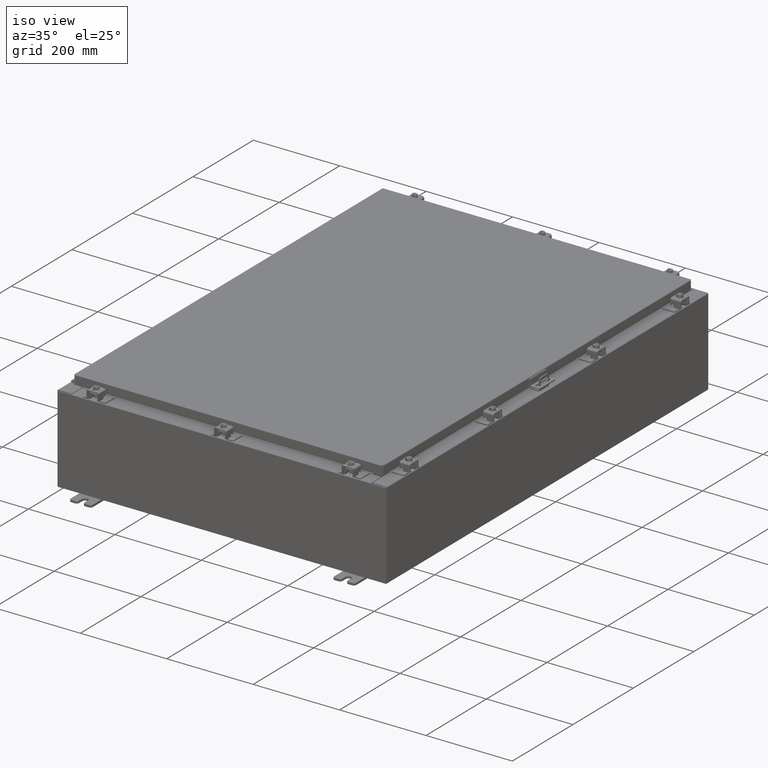
[diagram: clean part render]
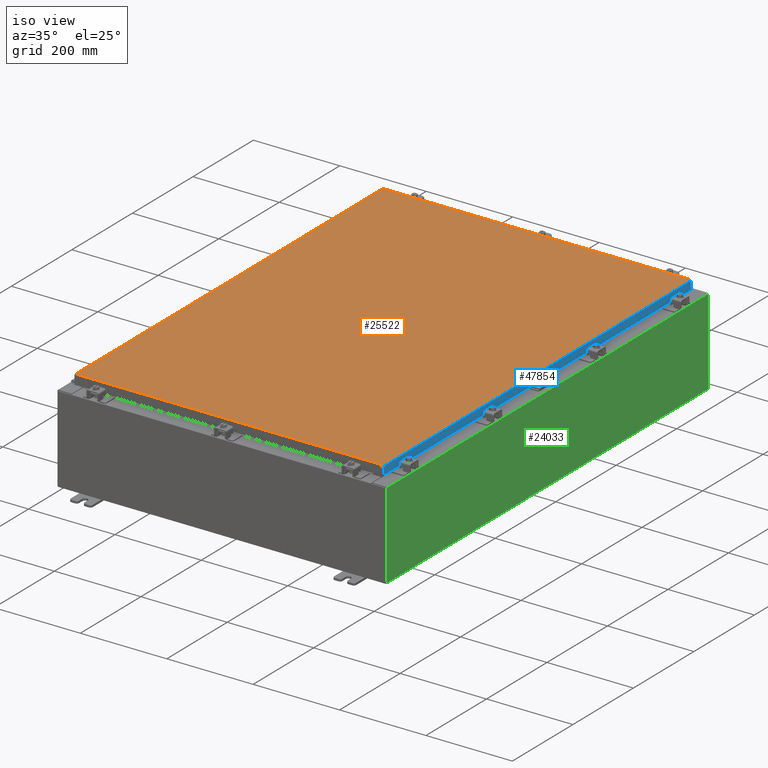
[diagram: same view with three faces highlighted in distinct colors, each labeled with its STEP entity id]
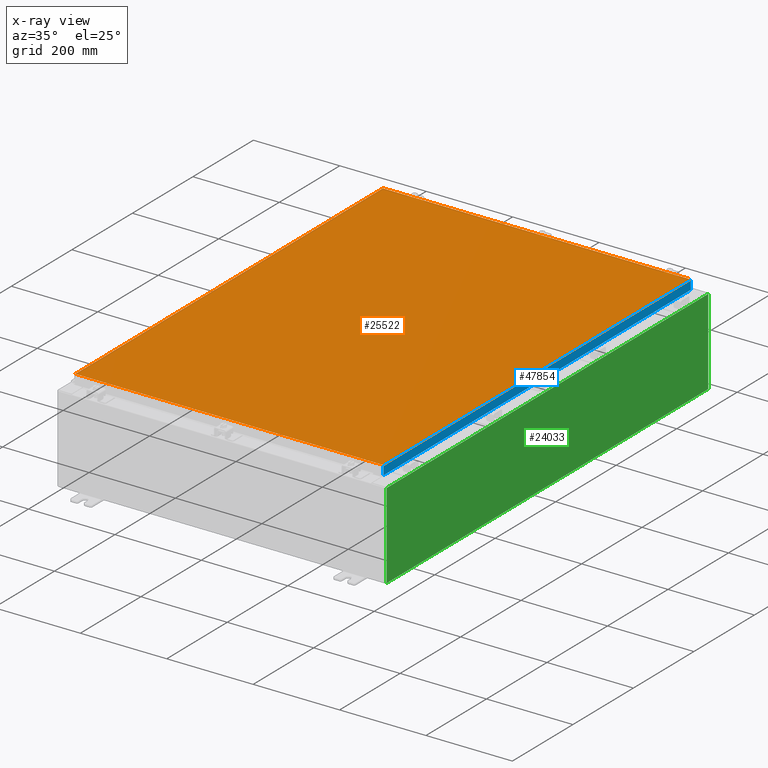
[diagram: x-ray of the same camera — body ghosted, the three highlighted faces saturated]
A machine part, iso view with three faces highlighted in distinct colors.
The next image is the same camera in x-ray (body ghosted, the three faces saturated) — at least one of them is partly hidden behind the body in this view.
Their STEP definitions:

[orange] entity #25522 — the highlighted planar face has unit normal (0, 0, -1).
#313 = VECTOR ( 'NONE', #47544, 39.37007874015748100 ) ;
#679 = DIRECTION ( 'NONE',  ( -1.000000000000000000, 0.0000000000000000000, -0.0000000000000000000 ) ) ;
#1890 = VERTEX_POINT ( 'NONE', #18269 ) ;
#2990 = CARTESIAN_POINT ( 'NONE',  ( 13.99030000000000100, 20.00630000000000700, 1.946441695485787500E-015 ) ) ;
#4310 = ORIENTED_EDGE ( 'NONE', *, *, #18295, .T. ) ;
#5176 = VECTOR ( 'NONE', #37061, 39.37007874015748100 ) ;
#6546 = FACE_OUTER_BOUND ( 'NONE', #15259, .T. ) ;
#6768 = ORIENTED_EDGE ( 'NONE', *, *, #30597, .T. ) ;
#11998 = AXIS2_PLACEMENT_3D ( 'NONE', #30314, #22970, #679 ) ;
#12288 = EDGE_CURVE ( 'NONE', #29133, #36327, #45917, .T. ) ;
#15259 = EDGE_LOOP ( 'NONE', ( #38358, #32200, #6768, #4310 ) ) ;
#15336 = DIRECTION ( 'NONE',  ( 0.0000000000000000000, -1.000000000000000000, 0.0000000000000000000 ) ) ;
#15792 = CARTESIAN_POINT ( 'NONE',  ( -13.99029999999999800, -20.00630000000001000, 1.946441695485787500E-015 ) ) ;
#16195 = VECTOR ( 'NONE', #18444, 39.37007874015748100 ) ;
#16483 = CARTESIAN_POINT ( 'NONE',  ( 13.99030000000000100, -20.00630000000000300, -2.048885995248197400E-016 ) ) ;
#18269 = CARTESIAN_POINT ( 'NONE',  ( -13.99029999999999800, 20.00630000000000000, -2.048885995248197400E-016 ) ) ;
#18295 = EDGE_CURVE ( 'NONE', #1890, #29133, #30411, .T. ) ;
#18444 = DIRECTION ( 'NONE',  ( 0.0000000000000000000, 1.000000000000000000, 0.0000000000000000000 ) ) ;
#20527 = VECTOR ( 'NONE', #15336, 39.37007874015748100 ) ;
#21123 = EDGE_CURVE ( 'NONE', #36327, #34178, #26036, .T. ) ;
#22970 = DIRECTION ( 'NONE',  ( 0.0000000000000000000, 0.0000000000000000000, -1.000000000000000000 ) ) ;
#25522 = ADVANCED_FACE ( 'NONE', ( #6546 ), #41553, .F. ) ;
#25782 = CARTESIAN_POINT ( 'NONE',  ( 13.99030000000000100, 20.00630000000000700, 1.946441695485787500E-015 ) ) ;
#26036 = LINE ( 'NONE', #44453, #16195 ) ;
#26344 = CARTESIAN_POINT ( 'NONE',  ( -13.99029999999999800, 20.00630000000000300, -2.048885995248197400E-016 ) ) ;
#29133 = VERTEX_POINT ( 'NONE', #15792 ) ;
#30029 = LINE ( 'NONE', #2990, #313 ) ;
#30314 = CARTESIAN_POINT ( 'NONE',  ( 0.0000000000000000000, 0.0000000000000000000, 0.0000000000000000000 ) ) ;
#30411 = LINE ( 'NONE', #26344, #20527 ) ;
#30597 = EDGE_CURVE ( 'NONE', #34178, #1890, #30029, .T. ) ;
#32200 = ORIENTED_EDGE ( 'NONE', *, *, #21123, .T. ) ;
#33311 = CARTESIAN_POINT ( 'NONE',  ( -13.99029999999999800, -20.00630000000001000, 1.946441695485787500E-015 ) ) ;
#34178 = VERTEX_POINT ( 'NONE', #25782 ) ;
#36327 = VERTEX_POINT ( 'NONE', #16483 ) ;
#37061 = DIRECTION ( 'NONE',  ( 1.000000000000000000, -0.0000000000000000000, -0.0000000000000000000 ) ) ;
#38358 = ORIENTED_EDGE ( 'NONE', *, *, #12288, .T. ) ;
#41553 = PLANE ( 'NONE',  #11998 ) ;
#44453 = CARTESIAN_POINT ( 'NONE',  ( 13.99030000000000100, -20.00630000000000300, -2.048885995248197400E-016 ) ) ;
#45917 = LINE ( 'NONE', #33311, #5176 ) ;
#47544 = DIRECTION ( 'NONE',  ( -1.000000000000000000, -0.0000000000000000000, -0.0000000000000000000 ) ) ;

[blue] entity #47854 — the highlighted planar face has unit normal (1, 0, 0).
#159 = CARTESIAN_POINT ( 'NONE',  ( 14.07800000000000500, -20.09400000000000800, -0.8499999999999996400 ) ) ;
#1443 = VERTEX_POINT ( 'NONE', #28542 ) ;
#1852 = ORIENTED_EDGE ( 'NONE', *, *, #14414, .F. ) ;
#2256 = LINE ( 'NONE', #5105, #10993 ) ;
#2348 = VERTEX_POINT ( 'NONE', #7243 ) ;
#3955 = VECTOR ( 'NONE', #26184, 39.37007874015748100 ) ;
#4820 = ORIENTED_EDGE ( 'NONE', *, *, #36289, .T. ) ;
#5105 = CARTESIAN_POINT ( 'NONE',  ( 14.07800000000000300, 0.0000000000000000000, -0.08770000000000007000 ) ) ;
#5284 = PLANE ( 'NONE',  #14372 ) ;
#6016 = LINE ( 'NONE', #42738, #24623 ) ;
#6045 = CARTESIAN_POINT ( 'NONE',  ( 14.07800000000000300, -20.00515786437628000, -0.07469999999999978000 ) ) ;
#7037 = ORIENTED_EDGE ( 'NONE', *, *, #10509, .F. ) ;
#7243 = CARTESIAN_POINT ( 'NONE',  ( 14.07800000000000500, -20.00515786437627200, -0.8499999999999996400 ) ) ;
#9798 = DIRECTION ( 'NONE',  ( -2.818880942772360100E-015, -6.982962677686265900E-015, 1.000000000000000000 ) ) ;
#9800 = EDGE_CURVE ( 'NONE', #22816, #28175, #6016, .T. ) ;
#10509 = EDGE_CURVE ( 'NONE', #2348, #42361, #14099, .T. ) ;
#10993 = VECTOR ( 'NONE', #38463, 39.37007874015748100 ) ;
#11867 = CARTESIAN_POINT ( 'NONE',  ( 14.07800000000000300, -20.00515786437628000, -0.08770000000000007000 ) ) ;
#13872 = LINE ( 'NONE', #159, #3955 ) ;
#14099 = LINE ( 'NONE', #6045, #22789 ) ;
#14372 = AXIS2_PLACEMENT_3D ( 'NONE', #23817, #38816, #16504 ) ;
#14414 = EDGE_CURVE ( 'NONE', #22816, #1443, #15002, .T. ) ;
#15002 = LINE ( 'NONE', #28951, #43534 ) ;
#16504 = DIRECTION ( 'NONE',  ( 2.818880942772360100E-015, 0.0000000000000000000, -1.000000000000000000 ) ) ;
#16517 = DIRECTION ( 'NONE',  ( -2.818880942772360100E-015, -6.982962677686265900E-015, 1.000000000000000000 ) ) ;
#18939 = EDGE_LOOP ( 'NONE', ( #7037, #23194, #39426, #1852, #44524, #4820 ) ) ;
#21173 = EDGE_CURVE ( 'NONE', #30120, #2348, #13872, .T. ) ;
#21449 = CARTESIAN_POINT ( 'NONE',  ( 14.07799999999999600, 19.25515786437627200, -0.8500000000000018700 ) ) ;
#22789 = VECTOR ( 'NONE', #9798, 39.37007874015748100 ) ;
#22816 = VERTEX_POINT ( 'NONE', #23352 ) ;
#23194 = ORIENTED_EDGE ( 'NONE', *, *, #21173, .F. ) ;
#23352 = CARTESIAN_POINT ( 'NONE',  ( 14.07800000000000500, 20.00515786437627200, -0.8499999999999996400 ) ) ;
#23817 = CARTESIAN_POINT ( 'NONE',  ( 14.07800000000000300, 0.0000000000000000000, 3.994501956836086900E-014 ) ) ;
#24369 = EDGE_CURVE ( 'NONE', #1443, #30120, #44484, .T. ) ;
#24623 = VECTOR ( 'NONE', #16517, 39.37007874015748100 ) ;
#24832 = CARTESIAN_POINT ( 'NONE',  ( 14.07800000000000300, 20.00515786437626900, -0.08770000000000007000 ) ) ;
#25167 = DIRECTION ( 'NONE',  ( 0.0000000000000000000, -1.000000000000000000, 0.0000000000000000000 ) ) ;
#26184 = DIRECTION ( 'NONE',  ( 0.0000000000000000000, -1.000000000000000000, 0.0000000000000000000 ) ) ;
#28175 = VERTEX_POINT ( 'NONE', #24832 ) ;
#28542 = CARTESIAN_POINT ( 'NONE',  ( 14.07799999999999600, 19.25515786437627200, -0.8500000000000018700 ) ) ;
#28951 = CARTESIAN_POINT ( 'NONE',  ( 14.07800000000000500, -20.09400000000000800, -0.8499999999999996400 ) ) ;
#29061 = FACE_OUTER_BOUND ( 'NONE', #18939, .T. ) ;
#29835 = CARTESIAN_POINT ( 'NONE',  ( 14.07799999999999600, -19.25515786437627600, -0.8500000000000018700 ) ) ;
#30120 = VERTEX_POINT ( 'NONE', #29835 ) ;
#33427 = VECTOR ( 'NONE', #25167, 39.37007874015748100 ) ;
#36289 = EDGE_CURVE ( 'NONE', #28175, #42361, #2256, .T. ) ;
#38463 = DIRECTION ( 'NONE',  ( 0.0000000000000000000, -1.000000000000000000, 0.0000000000000000000 ) ) ;
#38816 = DIRECTION ( 'NONE',  ( 1.000000000000000000, 0.0000000000000000000, 2.818880942772360100E-015 ) ) ;
#39426 = ORIENTED_EDGE ( 'NONE', *, *, #24369, .F. ) ;
#42361 = VERTEX_POINT ( 'NONE', #11867 ) ;
#42738 = CARTESIAN_POINT ( 'NONE',  ( 14.07800000000000300, 20.00515786437626900, 1.796402902965222800E-013 ) ) ;
#43534 = VECTOR ( 'NONE', #43783, 39.37007874015748100 ) ;
#43783 = DIRECTION ( 'NONE',  ( 0.0000000000000000000, -1.000000000000000000, 0.0000000000000000000 ) ) ;
#44484 = LINE ( 'NONE', #21449, #33427 ) ;
#44524 = ORIENTED_EDGE ( 'NONE', *, *, #9800, .T. ) ;
#47854 = ADVANCED_FACE ( 'NONE', ( #29061 ), #5284, .T. ) ;

[green] entity #24033 — the highlighted planar face has unit normal (-1, 0, 0).
#883 = VECTOR ( 'NONE', #23407, 39.37007874015748100 ) ;
#1826 = ORIENTED_EDGE ( 'NONE', *, *, #39650, .T. ) ;
#4540 = CARTESIAN_POINT ( 'NONE',  ( 15.00000000000003200, -20.92529999999998900, 7.837599999999999200 ) ) ;
#4843 = EDGE_CURVE ( 'NONE', #10370, #42790, #24791, .T. ) ;
#5166 = EDGE_CURVE ( 'NONE', #42790, #27906, #20711, .T. ) ;
#6193 = VECTOR ( 'NONE', #35812, 39.37007874015748100 ) ;
#10370 = VERTEX_POINT ( 'NONE', #31259 ) ;
#11895 = EDGE_LOOP ( 'NONE', ( #34378, #1826, #18005, #34169 ) ) ;
#12060 = PLANE ( 'NONE',  #25263 ) ;
#13376 = EDGE_CURVE ( 'NONE', #10370, #18408, #31950, .T. ) ;
#15770 = CARTESIAN_POINT ( 'NONE',  ( 15.00000000000000400, 0.0000000000000000000, -5.403395625144963300E-014 ) ) ;
#15972 = CARTESIAN_POINT ( 'NONE',  ( 15.00000000000000400, -20.92529999999998900, 0.01299999999999920500 ) ) ;
#18005 = ORIENTED_EDGE ( 'NONE', *, *, #13376, .F. ) ;
#18408 = VERTEX_POINT ( 'NONE', #15972 ) ;
#19514 = DIRECTION ( 'NONE',  ( 3.584876173029202900E-015, 0.0000000000000000000, 1.000000000000000000 ) ) ;
#20711 = LINE ( 'NONE', #45694, #883 ) ;
#23407 = DIRECTION ( 'NONE',  ( -0.0000000000000000000, -1.000000000000000000, -0.0000000000000000000 ) ) ;
#24033 = ADVANCED_FACE ( 'NONE', ( #43932 ), #12060, .F. ) ;
#24791 = LINE ( 'NONE', #32072, #6193 ) ;
#25263 = AXIS2_PLACEMENT_3D ( 'NONE', #15770, #41817, #19514 ) ;
#27906 = VERTEX_POINT ( 'NONE', #4540 ) ;
#31259 = CARTESIAN_POINT ( 'NONE',  ( 15.00000000000000400, 20.92529999999999300, 0.01300000000000203200 ) ) ;
#31950 = LINE ( 'NONE', #38456, #33099 ) ;
#32072 = CARTESIAN_POINT ( 'NONE',  ( 15.00000000000000400, 20.92529999999999600, -5.403395625144963300E-014 ) ) ;
#32961 = CARTESIAN_POINT ( 'NONE',  ( 15.00000000000003200, 20.92529999999998600, 7.837599999999999200 ) ) ;
#33099 = VECTOR ( 'NONE', #42024, 39.37007874015748100 ) ;
#33345 = VECTOR ( 'NONE', #44656, 39.37007874015748100 ) ;
#34169 = ORIENTED_EDGE ( 'NONE', *, *, #4843, .T. ) ;
#34378 = ORIENTED_EDGE ( 'NONE', *, *, #5166, .T. ) ;
#34523 = LINE ( 'NONE', #40934, #33345 ) ;
#35812 = DIRECTION ( 'NONE',  ( 3.584876173029202900E-015, 0.0000000000000000000, 1.000000000000000000 ) ) ;
#38456 = CARTESIAN_POINT ( 'NONE',  ( 15.00000000000000400, -20.92529999999998900, 0.01299999999999984700 ) ) ;
#39650 = EDGE_CURVE ( 'NONE', #27906, #18408, #34523, .T. ) ;
#40934 = CARTESIAN_POINT ( 'NONE',  ( 15.00000000000000400, -20.92529999999998900, -5.403395625144963300E-014 ) ) ;
#41817 = DIRECTION ( 'NONE',  ( -1.000000000000000000, 0.0000000000000000000, 3.584876173029202900E-015 ) ) ;
#42024 = DIRECTION ( 'NONE',  ( -1.872056655020411900E-031, -1.000000000000000000, -5.222095728451712300E-017 ) ) ;
#42790 = VERTEX_POINT ( 'NONE', #32961 ) ;
#43932 = FACE_OUTER_BOUND ( 'NONE', #11895, .T. ) ;
#44656 = DIRECTION ( 'NONE',  ( -3.584876173029202900E-015, 0.0000000000000000000, -1.000000000000000000 ) ) ;
#45694 = CARTESIAN_POINT ( 'NONE',  ( 15.00000000000003200, 20.92529999999998900, 7.837599999999999200 ) ) ;